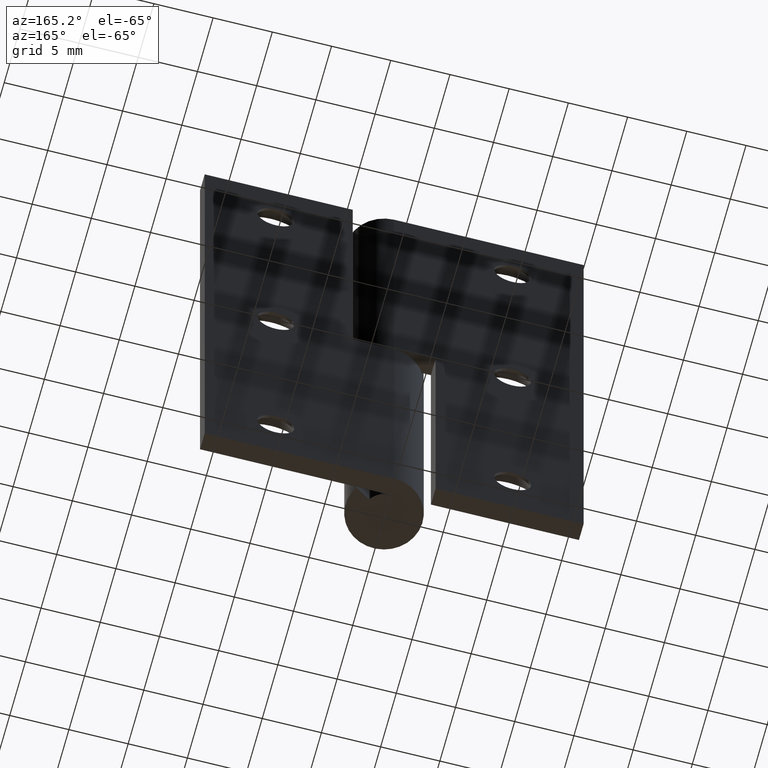
[diagram: clean part render]
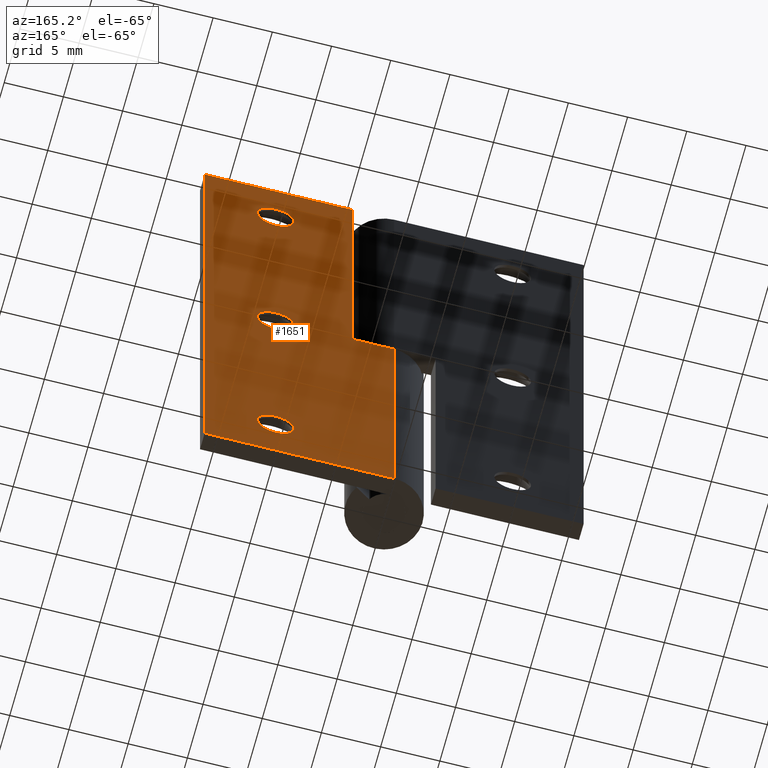
[diagram: same view with one face highlighted and labeled with its STEP entity id]
A machine part, auxiliary view. The second image highlights one B-rep face of the part: STEP entity #1651.
In plain terms, the highlighted face is a freeform B-spline surface patch.
Its self-contained STEP definition (entity closure, byte-faithful):
#353=CARTESIAN_POINT('',(11.539877222080049,3.250000000000000,44.823143728075642));
#354=VERTEX_POINT('',#353);
#360=CARTESIAN_POINT('',(10.0,3.250000000000000,43.450000000000003));
#361=VERTEX_POINT('',#360);
#362=CARTESIAN_POINT('',(11.539877222080044,3.250000000000000,44.823143728075635));
#363=CARTESIAN_POINT('',(11.382170222342125,3.250000000000000,43.449999999999996));
#364=CARTESIAN_POINT('',(10.0,3.250000000000000,43.450000000000003));
#372=(BOUNDED_CURVE()B_SPLINE_CURVE(2,(#362,#363,#364),.UNSPECIFIED.,.F.,.U.)B_SPLINE_CURVE_WITH_KNOTS((3,3),(0.269767808976302,0.500000000000000),.UNSPECIFIED.)CURVE()GEOMETRIC_REPRESENTATION_ITEM()RATIONAL_B_SPLINE_CURVE((0.957343631716455,0.730266209986382,1.0))REPRESENTATION_ITEM(''));
#373=EDGE_CURVE('',#354,#361,#372,.T.);
#375=CARTESIAN_POINT('',(8.452891062457136,3.250000000000000,44.905374763540649));
#376=VERTEX_POINT('',#375);
#377=CARTESIAN_POINT('',(10.0,3.250000000000000,43.450000000000003));
#378=CARTESIAN_POINT('',(8.541905596636706,3.250000000000001,43.450000000000003));
#379=CARTESIAN_POINT('',(8.452891062457137,3.250000000000000,44.905374763540657));
#387=(BOUNDED_CURVE()B_SPLINE_CURVE(2,(#377,#378,#379),.UNSPECIFIED.,.F.,.U.)B_SPLINE_CURVE_WITH_KNOTS((3,3),(0.500000000000000,0.739332962201746),.UNSPECIFIED.)CURVE()GEOMETRIC_REPRESENTATION_ITEM()RATIONAL_B_SPLINE_CURVE((1.0,0.719603993330289,0.976072041586998))REPRESENTATION_ITEM(''));
#388=EDGE_CURVE('',#361,#376,#387,.T.);
#483=CARTESIAN_POINT('',(10.0,3.250000000000000,46.549999999999997));
#484=VERTEX_POINT('',#483);
#485=CARTESIAN_POINT('',(8.452891062457136,3.250000000000000,44.905374763540649));
#486=CARTESIAN_POINT('',(8.450000000000001,3.250000000000000,44.952643216706363));
#487=CARTESIAN_POINT('',(8.450000000000001,3.250000000000000,45.0));
#488=CARTESIAN_POINT('',(8.450000000000001,3.250000000000000,46.549999999999990));
#489=CARTESIAN_POINT('',(10.0,3.250000000000000,46.549999999999997));
#497=(BOUNDED_CURVE()B_SPLINE_CURVE(2,(#485,#486,#487,#488,#489),.UNSPECIFIED.,.F.,.U.)B_SPLINE_CURVE_WITH_KNOTS((3,2,3),(0.739332962201746,0.750000000000000,1.0),.UNSPECIFIED.)CURVE()GEOMETRIC_REPRESENTATION_ITEM()RATIONAL_B_SPLINE_CURVE((0.976072041586997,0.987502787856258,1.0,0.707106781186547,1.0))REPRESENTATION_ITEM(''));
#498=EDGE_CURVE('',#376,#484,#497,.T.);
#500=CARTESIAN_POINT('',(10.0,3.250000000000000,46.549999999999997));
#501=CARTESIAN_POINT('',(11.549999999999999,3.250000000000000,46.549999999999990));
#502=CARTESIAN_POINT('',(11.550000000000001,3.250000000000000,45.0));
#503=CARTESIAN_POINT('',(11.549999999999995,3.250000000000000,44.911282041749296));
#504=CARTESIAN_POINT('',(11.539877222080046,3.250000000000000,44.823143728075642));
#512=(BOUNDED_CURVE()B_SPLINE_CURVE(2,(#500,#501,#502,#503,#504),.UNSPECIFIED.,.F.,.U.)B_SPLINE_CURVE_WITH_KNOTS((3,2,3),(0.0,0.250000000000000,0.269767808976302),.UNSPECIFIED.)CURVE()GEOMETRIC_REPRESENTATION_ITEM()RATIONAL_B_SPLINE_CURVE((1.0,0.707106781186547,1.0,0.976840571200166,0.957343631716454))REPRESENTATION_ITEM(''));
#513=EDGE_CURVE('',#484,#354,#512,.T.);
#681=CARTESIAN_POINT('',(11.539877222080040,3.250000000000000,24.823143728075639));
#682=VERTEX_POINT('',#681);
#688=CARTESIAN_POINT('',(10.0,3.250000000000000,23.449999999999999));
#689=VERTEX_POINT('',#688);
#690=CARTESIAN_POINT('',(11.539877222080042,3.250000000000000,24.823143728075642));
#691=CARTESIAN_POINT('',(11.382170222342124,3.250000000000000,23.450000000000010));
#692=CARTESIAN_POINT('',(10.0,3.250000000000000,23.449999999999999));
#700=(BOUNDED_CURVE()B_SPLINE_CURVE(2,(#690,#691,#692),.UNSPECIFIED.,.F.,.U.)B_SPLINE_CURVE_WITH_KNOTS((3,3),(0.269767808976302,0.500000000000000),.UNSPECIFIED.)CURVE()GEOMETRIC_REPRESENTATION_ITEM()RATIONAL_B_SPLINE_CURVE((0.957343631716454,0.730266209986382,1.0))REPRESENTATION_ITEM(''));
#701=EDGE_CURVE('',#682,#689,#700,.T.);
#703=CARTESIAN_POINT('',(8.452891062457137,3.250000000000000,24.905374763540649));
#704=VERTEX_POINT('',#703);
#705=CARTESIAN_POINT('',(10.0,3.250000000000000,23.449999999999999));
#706=CARTESIAN_POINT('',(8.541905596636706,3.250000000000001,23.450000000000003));
#707=CARTESIAN_POINT('',(8.452891062457137,3.250000000000000,24.905374763540653));
#715=(BOUNDED_CURVE()B_SPLINE_CURVE(2,(#705,#706,#707),.UNSPECIFIED.,.F.,.U.)B_SPLINE_CURVE_WITH_KNOTS((3,3),(0.500000000000000,0.739332962201746),.UNSPECIFIED.)CURVE()GEOMETRIC_REPRESENTATION_ITEM()RATIONAL_B_SPLINE_CURVE((1.0,0.719603993330289,0.976072041586998))REPRESENTATION_ITEM(''));
#716=EDGE_CURVE('',#689,#704,#715,.T.);
#811=CARTESIAN_POINT('',(10.0,3.250000000000000,26.550000000000001));
#812=VERTEX_POINT('',#811);
#813=CARTESIAN_POINT('',(8.452891062457137,3.250000000000000,24.905374763540649));
#814=CARTESIAN_POINT('',(8.450000000000003,3.250000000000000,24.952643216706363));
#815=CARTESIAN_POINT('',(8.450000000000001,3.250000000000000,25.0));
#816=CARTESIAN_POINT('',(8.450000000000001,3.250000000000000,26.550000000000008));
#817=CARTESIAN_POINT('',(10.0,3.250000000000000,26.550000000000001));
#825=(BOUNDED_CURVE()B_SPLINE_CURVE(2,(#813,#814,#815,#816,#817),.UNSPECIFIED.,.F.,.U.)B_SPLINE_CURVE_WITH_KNOTS((3,2,3),(0.739332962201746,0.750000000000000,1.0),.UNSPECIFIED.)CURVE()GEOMETRIC_REPRESENTATION_ITEM()RATIONAL_B_SPLINE_CURVE((0.976072041586997,0.987502787856258,1.0,0.707106781186547,1.0))REPRESENTATION_ITEM(''));
#826=EDGE_CURVE('',#704,#812,#825,.T.);
#828=CARTESIAN_POINT('',(10.0,3.250000000000000,26.550000000000001));
#829=CARTESIAN_POINT('',(11.549999999999999,3.250000000000000,26.550000000000008));
#830=CARTESIAN_POINT('',(11.550000000000001,3.250000000000000,25.0));
#831=CARTESIAN_POINT('',(11.549999999999999,3.250000000000001,24.911282041749292));
#832=CARTESIAN_POINT('',(11.539877222080042,3.250000000000000,24.823143728075642));
#840=(BOUNDED_CURVE()B_SPLINE_CURVE(2,(#828,#829,#830,#831,#832),.UNSPECIFIED.,.F.,.U.)B_SPLINE_CURVE_WITH_KNOTS((3,2,3),(0.0,0.250000000000000,0.269767808976302),.UNSPECIFIED.)CURVE()GEOMETRIC_REPRESENTATION_ITEM()RATIONAL_B_SPLINE_CURVE((1.0,0.707106781186547,1.0,0.976840571200165,0.957343631716454))REPRESENTATION_ITEM(''));
#841=EDGE_CURVE('',#812,#682,#840,.T.);
#1009=CARTESIAN_POINT('',(11.539877222080040,3.250000000000000,4.823143728075639));
#1010=VERTEX_POINT('',#1009);
#1016=CARTESIAN_POINT('',(10.0,3.250000000000000,3.450000000000000));
#1017=VERTEX_POINT('',#1016);
#1018=CARTESIAN_POINT('',(11.539877222080040,3.250000000000000,4.823143728075639));
#1019=CARTESIAN_POINT('',(11.382170222342118,3.250000000000001,3.450000000000000));
#1020=CARTESIAN_POINT('',(10.0,3.250000000000000,3.450000000000000));
#1028=(BOUNDED_CURVE()B_SPLINE_CURVE(2,(#1018,#1019,#1020),.UNSPECIFIED.,.F.,.U.)B_SPLINE_CURVE_WITH_KNOTS((3,3),(0.269767808976303,0.500000000000000),.UNSPECIFIED.)CURVE()GEOMETRIC_REPRESENTATION_ITEM()RATIONAL_B_SPLINE_CURVE((0.957343631716453,0.730266209986383,1.0))REPRESENTATION_ITEM(''));
#1029=EDGE_CURVE('',#1010,#1017,#1028,.T.);
#1031=CARTESIAN_POINT('',(8.452891062457136,3.250000000000000,4.905374763540648));
#1032=VERTEX_POINT('',#1031);
#1033=CARTESIAN_POINT('',(10.0,3.250000000000000,3.450000000000000));
#1034=CARTESIAN_POINT('',(8.541905596636706,3.250000000000001,3.450000000000000));
#1035=CARTESIAN_POINT('',(8.452891062457137,3.250000000000000,4.905374763540649));
#1043=(BOUNDED_CURVE()B_SPLINE_CURVE(2,(#1033,#1034,#1035),.UNSPECIFIED.,.F.,.U.)B_SPLINE_CURVE_WITH_KNOTS((3,3),(0.500000000000000,0.739332962201746),.UNSPECIFIED.)CURVE()GEOMETRIC_REPRESENTATION_ITEM()RATIONAL_B_SPLINE_CURVE((1.0,0.719603993330289,0.976072041586998))REPRESENTATION_ITEM(''));
#1044=EDGE_CURVE('',#1017,#1032,#1043,.T.);
#1139=CARTESIAN_POINT('',(10.0,3.250000000000000,6.550000000000001));
#1140=VERTEX_POINT('',#1139);
#1141=CARTESIAN_POINT('',(8.452891062457137,3.250000000000000,4.905374763540649));
#1142=CARTESIAN_POINT('',(8.450000000000001,3.250000000000000,4.952643216706358));
#1143=CARTESIAN_POINT('',(8.450000000000001,3.250000000000000,5.0));
#1144=CARTESIAN_POINT('',(8.450000000000001,3.250000000000000,6.550000000000000));
#1145=CARTESIAN_POINT('',(10.0,3.250000000000000,6.550000000000001));
#1153=(BOUNDED_CURVE()B_SPLINE_CURVE(2,(#1141,#1142,#1143,#1144,#1145),.UNSPECIFIED.,.F.,.U.)B_SPLINE_CURVE_WITH_KNOTS((3,2,3),(0.739332962201746,0.750000000000000,1.0),.UNSPECIFIED.)CURVE()GEOMETRIC_REPRESENTATION_ITEM()RATIONAL_B_SPLINE_CURVE((0.976072041586998,0.987502787856258,1.0,0.707106781186547,1.0))REPRESENTATION_ITEM(''));
#1154=EDGE_CURVE('',#1032,#1140,#1153,.T.);
#1156=CARTESIAN_POINT('',(10.0,3.250000000000000,6.550000000000001));
#1157=CARTESIAN_POINT('',(11.549999999999999,3.250000000000000,6.550000000000000));
#1158=CARTESIAN_POINT('',(11.550000000000001,3.250000000000000,5.0));
#1159=CARTESIAN_POINT('',(11.549999999999995,3.250000000000000,4.911282041749294));
#1160=CARTESIAN_POINT('',(11.539877222080040,3.250000000000000,4.823143728075639));
#1168=(BOUNDED_CURVE()B_SPLINE_CURVE(2,(#1156,#1157,#1158,#1159,#1160),.UNSPECIFIED.,.F.,.U.)B_SPLINE_CURVE_WITH_KNOTS((3,2,3),(0.0,0.250000000000000,0.269767808976303),.UNSPECIFIED.)CURVE()GEOMETRIC_REPRESENTATION_ITEM()RATIONAL_B_SPLINE_CURVE((1.0,0.707106781186547,1.0,0.976840571200165,0.957343631716453))REPRESENTATION_ITEM(''));
#1169=EDGE_CURVE('',#1140,#1010,#1168,.T.);
#1309=CARTESIAN_POINT('',(3.500000000000000,3.250000000000000,50.0));
#1310=VERTEX_POINT('',#1309);
#1316=CARTESIAN_POINT('',(3.500000000000000,3.250000000000000,25.0));
#1317=VERTEX_POINT('',#1316);
#1318=CARTESIAN_POINT('',(3.500000000000000,3.250000000000000,50.0));
#1319=CARTESIAN_POINT('',(3.500000000000000,3.250000000000000,25.0));
#1320=QUASI_UNIFORM_CURVE('',1,(#1318,#1319),.UNSPECIFIED.,.F.,.U.);
#1321=EDGE_CURVE('',#1310,#1317,#1320,.T.);
#1343=CARTESIAN_POINT('',(0.0,3.250000000000000,25.0));
#1344=VERTEX_POINT('',#1343);
#1400=CARTESIAN_POINT('',(3.500000000000000,3.250000000000000,25.0));
#1401=CARTESIAN_POINT('',(0.0,3.250000000000000,25.0));
#1402=QUASI_UNIFORM_CURVE('',1,(#1400,#1401),.UNSPECIFIED.,.F.,.U.);
#1403=EDGE_CURVE('',#1317,#1344,#1402,.T.);
#1443=CARTESIAN_POINT('',(0.0,3.250000000000000,0.0));
#1444=VERTEX_POINT('',#1443);
#1464=CARTESIAN_POINT('',(16.0,3.250000000000000,0.0));
#1465=VERTEX_POINT('',#1464);
#1466=CARTESIAN_POINT('',(16.0,3.250000000000000,0.0));
#1467=CARTESIAN_POINT('',(0.0,3.250000000000000,0.0));
#1468=QUASI_UNIFORM_CURVE('',1,(#1466,#1467),.UNSPECIFIED.,.F.,.U.);
#1469=EDGE_CURVE('',#1465,#1444,#1468,.T.);
#1491=CARTESIAN_POINT('',(16.0,3.250000000000000,50.0));
#1492=VERTEX_POINT('',#1491);
#1493=CARTESIAN_POINT('',(16.0,3.250000000000000,50.0));
#1494=CARTESIAN_POINT('',(3.500000000000000,3.250000000000000,50.0));
#1495=QUASI_UNIFORM_CURVE('',1,(#1493,#1494),.UNSPECIFIED.,.F.,.U.);
#1496=EDGE_CURVE('',#1492,#1310,#1495,.T.);
#1558=CARTESIAN_POINT('',(0.0,3.250000000000000,25.0));
#1559=CARTESIAN_POINT('',(0.0,3.250000000000000,0.0));
#1560=QUASI_UNIFORM_CURVE('',1,(#1558,#1559),.UNSPECIFIED.,.F.,.U.);
#1561=EDGE_CURVE('',#1344,#1444,#1560,.T.);
#1573=CARTESIAN_POINT('',(16.0,3.250000000000000,50.0));
#1574=CARTESIAN_POINT('',(16.0,3.250000000000000,0.0));
#1575=QUASI_UNIFORM_CURVE('',1,(#1573,#1574),.UNSPECIFIED.,.F.,.U.);
#1576=EDGE_CURVE('',#1492,#1465,#1575,.T.);
#1620=CARTESIAN_POINT('',(-0.799199968988895,3.250000000000000,52.497499903090286));
#1621=CARTESIAN_POINT('',(-0.799199968988895,3.250000000000000,-2.497501244194806));
#1622=CARTESIAN_POINT('',(16.799200398142339,3.250000000000000,52.497499903090301));
#1623=CARTESIAN_POINT('',(16.799200398142339,3.250000000000000,-2.497501244194806));
#1624=B_SPLINE_SURFACE_WITH_KNOTS('',1,1,((#1620,#1622),(#1621,#1623)),.UNSPECIFIED.,.F.,.F.,.U.,(2,2),(2,2),(0.0,54.995001147285109),(0.0,17.598400367131230),.UNSPECIFIED.);
#1625=ORIENTED_EDGE('',*,*,#1403,.F.);
#1626=ORIENTED_EDGE('',*,*,#1321,.F.);
#1627=ORIENTED_EDGE('',*,*,#1496,.F.);
#1628=ORIENTED_EDGE('',*,*,#1576,.T.);
#1629=ORIENTED_EDGE('',*,*,#1469,.T.);
#1630=ORIENTED_EDGE('',*,*,#1561,.F.);
#1631=EDGE_LOOP('',(#1625,#1626,#1627,#1628,#1629,#1630));
#1632=FACE_OUTER_BOUND('',#1631,.T.);
#1633=ORIENTED_EDGE('',*,*,#1044,.F.);
#1634=ORIENTED_EDGE('',*,*,#1029,.F.);
#1635=ORIENTED_EDGE('',*,*,#1169,.F.);
#1636=ORIENTED_EDGE('',*,*,#1154,.F.);
#1637=EDGE_LOOP('',(#1633,#1634,#1635,#1636));
#1638=FACE_BOUND('',#1637,.T.);
#1639=ORIENTED_EDGE('',*,*,#716,.F.);
#1640=ORIENTED_EDGE('',*,*,#701,.F.);
#1641=ORIENTED_EDGE('',*,*,#841,.F.);
#1642=ORIENTED_EDGE('',*,*,#826,.F.);
#1643=EDGE_LOOP('',(#1639,#1640,#1641,#1642));
#1644=FACE_BOUND('',#1643,.T.);
#1645=ORIENTED_EDGE('',*,*,#388,.F.);
#1646=ORIENTED_EDGE('',*,*,#373,.F.);
#1647=ORIENTED_EDGE('',*,*,#513,.F.);
#1648=ORIENTED_EDGE('',*,*,#498,.F.);
#1649=EDGE_LOOP('',(#1645,#1646,#1647,#1648));
#1650=FACE_BOUND('',#1649,.T.);
#1651=ADVANCED_FACE('',(#1632,#1638,#1644,#1650),#1624,.F.);